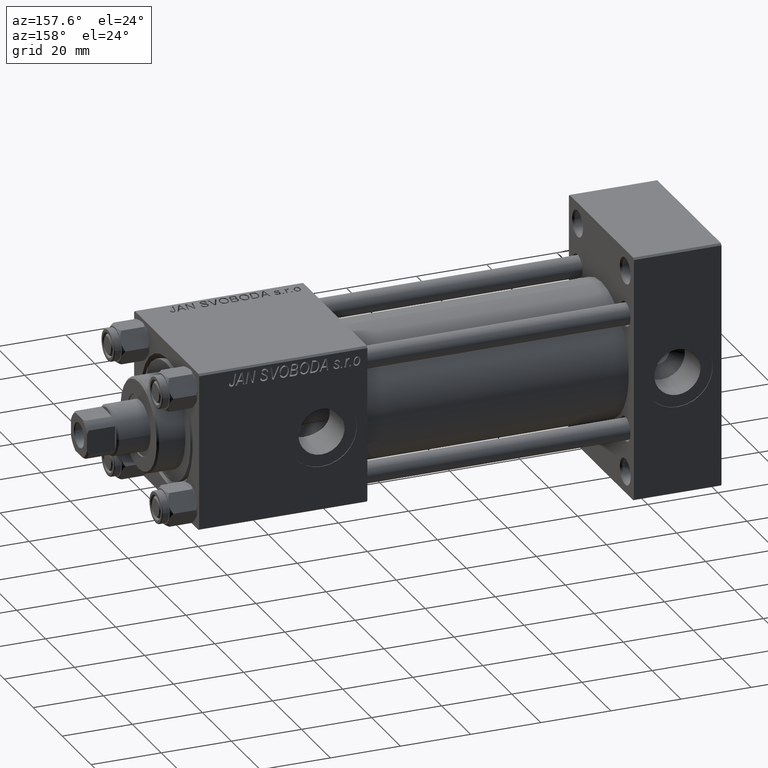
[diagram: clean part render]
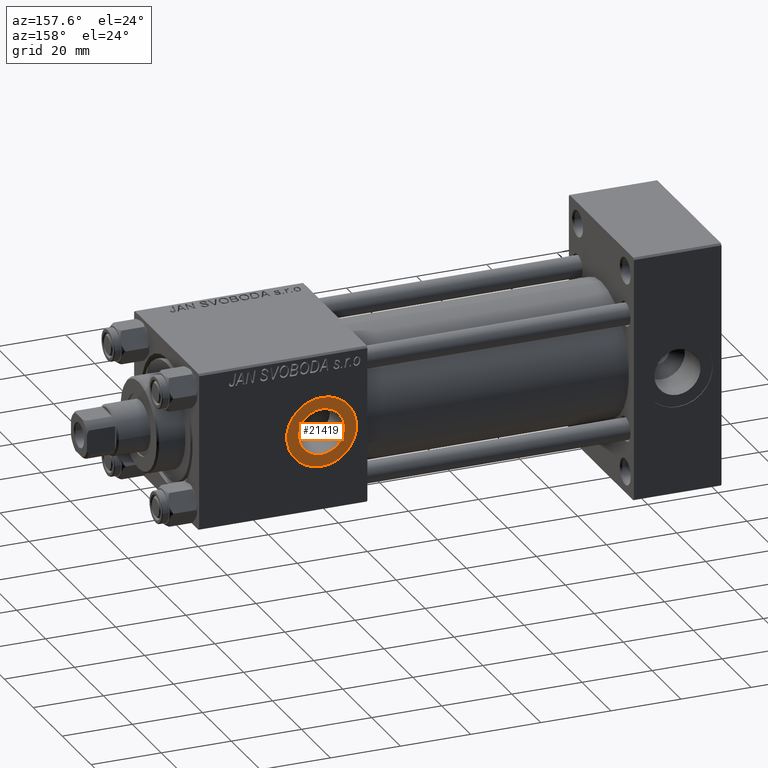
[diagram: same view with one face highlighted and labeled with its STEP entity id]
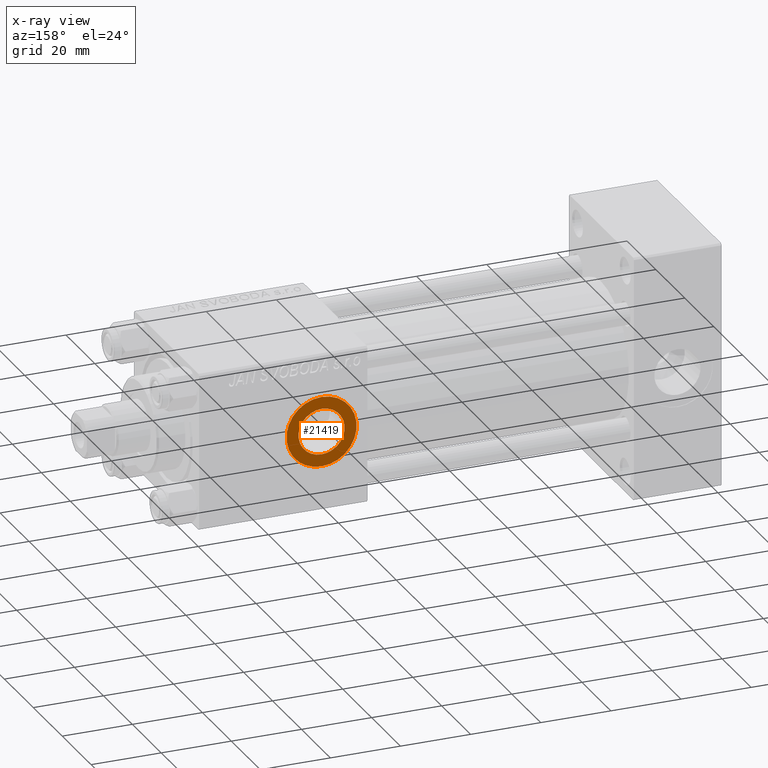
[diagram: x-ray of the same camera — body ghosted, the highlighted face saturated]
A machine part, auxiliary view. The second image highlights one B-rep face of the part: STEP entity #21419.
The next image is the same camera in x-ray: the body ghosted, the highlighted face saturated — about 0% of this face is hidden behind the body in this view.
In plain terms, the highlighted planar face has unit normal (0, 1, 0).
Its self-contained STEP definition (entity closure, byte-faithful):
#1741 = ORIENTED_EDGE ( 'NONE', *, *, #13760, .F. ) ;
#2083 = CARTESIAN_POINT ( 'NONE',  ( 114.0000000000000000, 22.30000000000000426, -9.999999999999994671 ) ) ;
#2119 = EDGE_CURVE ( 'NONE', #41118, #32796, #40595, .T. ) ;
#2849 = EDGE_CURVE ( 'NONE', #32796, #41118, #27720, .T. ) ;
#4295 = DIRECTION ( 'NONE',  ( 0.000000000000000000, 0.000000000000000000, 1.000000000000000000 ) ) ;
#6773 = CARTESIAN_POINT ( 'NONE',  ( 114.0000000000000000, 22.30000000000000426, 9.999999999999994671 ) ) ;
#10211 = AXIS2_PLACEMENT_3D ( 'NONE', #25702, #13831, #40856 ) ;
#10761 = AXIS2_PLACEMENT_3D ( 'NONE', #29006, #33288, #37318 ) ;
#11332 = CARTESIAN_POINT ( 'NONE',  ( 114.0000000000000000, 22.30000000000000426, 0.000000000000000000 ) ) ;
#13760 = EDGE_CURVE ( 'NONE', #18894, #30201, #48094, .T. ) ;
#13831 = DIRECTION ( 'NONE',  ( 0.000000000000000000, 1.000000000000000000, 0.000000000000000000 ) ) ;
#16198 = ORIENTED_EDGE ( 'NONE', *, *, #2119, .T. ) ;
#18894 = VERTEX_POINT ( 'NONE', #41542 ) ;
#19323 = AXIS2_PLACEMENT_3D ( 'NONE', #11332, #33310, #38347 ) ;
#21419 = ADVANCED_FACE ( 'NONE', ( #30524, #34061 ), #41383, .T. ) ;
#23812 = CARTESIAN_POINT ( 'NONE',  ( 114.0000000000000000, 22.30000000000000426, 0.000000000000000000 ) ) ;
#24483 = AXIS2_PLACEMENT_3D ( 'NONE', #38659, #34627, #4295 ) ;
#25702 = CARTESIAN_POINT ( 'NONE',  ( 114.0000000000000000, 22.30000000000000426, 0.000000000000000000 ) ) ;
#27309 = CIRCLE ( 'NONE', #39418, 6.580000000000002736 ) ;
#27393 = EDGE_LOOP ( 'NONE', ( #16198, #38146 ) ) ;
#27720 = CIRCLE ( 'NONE', #24483, 9.999999999999994671 ) ;
#29006 = CARTESIAN_POINT ( 'NONE',  ( 114.0000000000000000, 22.30000000000000426, 0.000000000000000000 ) ) ;
#30201 = VERTEX_POINT ( 'NONE', #45835 ) ;
#30524 = FACE_BOUND ( 'NONE', #49230, .T. ) ;
#32796 = VERTEX_POINT ( 'NONE', #2083 ) ;
#33288 = DIRECTION ( 'NONE',  ( 0.000000000000000000, 1.000000000000000000, 0.000000000000000000 ) ) ;
#33310 = DIRECTION ( 'NONE',  ( 0.000000000000000000, 1.000000000000000000, 0.000000000000000000 ) ) ;
#34061 = FACE_OUTER_BOUND ( 'NONE', #27393, .T. ) ;
#34627 = DIRECTION ( 'NONE',  ( 0.000000000000000000, 1.000000000000000000, 0.000000000000000000 ) ) ;
#35412 = ORIENTED_EDGE ( 'NONE', *, *, #42700, .F. ) ;
#35420 = DIRECTION ( 'NONE',  ( 0.000000000000000000, 0.000000000000000000, 1.000000000000000000 ) ) ;
#37318 = DIRECTION ( 'NONE',  ( 0.000000000000000000, 0.000000000000000000, 1.000000000000000000 ) ) ;
#38146 = ORIENTED_EDGE ( 'NONE', *, *, #2849, .T. ) ;
#38347 = DIRECTION ( 'NONE',  ( 0.000000000000000000, -0.000000000000000000, 1.000000000000000000 ) ) ;
#38659 = CARTESIAN_POINT ( 'NONE',  ( 114.0000000000000000, 22.30000000000000426, 0.000000000000000000 ) ) ;
#39204 = DIRECTION ( 'NONE',  ( 0.000000000000000000, 1.000000000000000000, 0.000000000000000000 ) ) ;
#39418 = AXIS2_PLACEMENT_3D ( 'NONE', #23812, #39204, #35420 ) ;
#40595 = CIRCLE ( 'NONE', #10761, 9.999999999999994671 ) ;
#40856 = DIRECTION ( 'NONE',  ( 0.000000000000000000, 0.000000000000000000, 1.000000000000000000 ) ) ;
#41118 = VERTEX_POINT ( 'NONE', #6773 ) ;
#41383 = PLANE ( 'NONE',  #19323 ) ;
#41542 = CARTESIAN_POINT ( 'NONE',  ( 114.0000000000000000, 22.30000000000000426, 6.580000000000002736 ) ) ;
#42700 = EDGE_CURVE ( 'NONE', #30201, #18894, #27309, .T. ) ;
#45835 = CARTESIAN_POINT ( 'NONE',  ( 114.0000000000000000, 22.30000000000000426, -6.580000000000002736 ) ) ;
#48094 = CIRCLE ( 'NONE', #10211, 6.580000000000002736 ) ;
#49230 = EDGE_LOOP ( 'NONE', ( #1741, #35412 ) ) ;